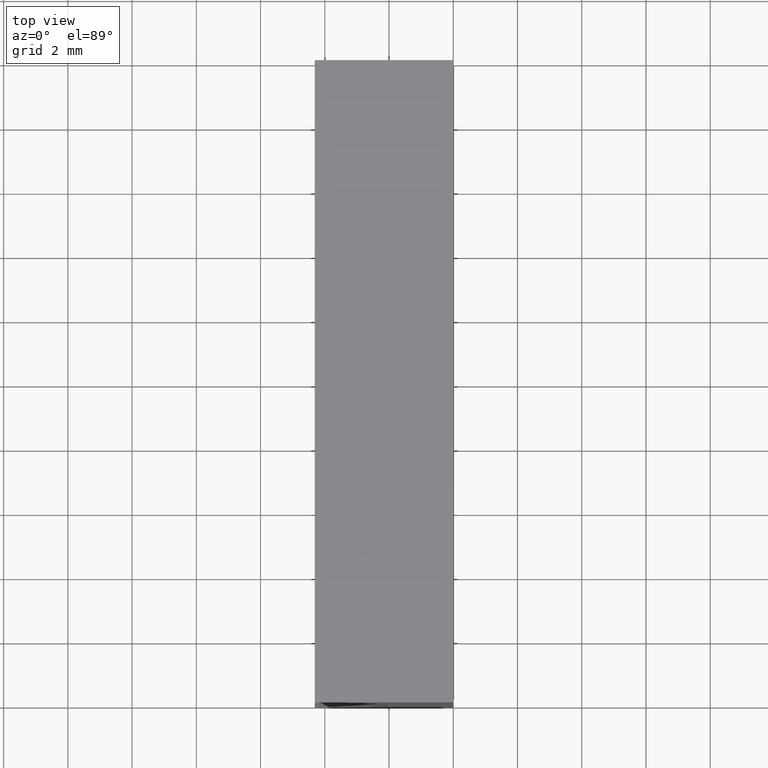
[diagram: clean part render]
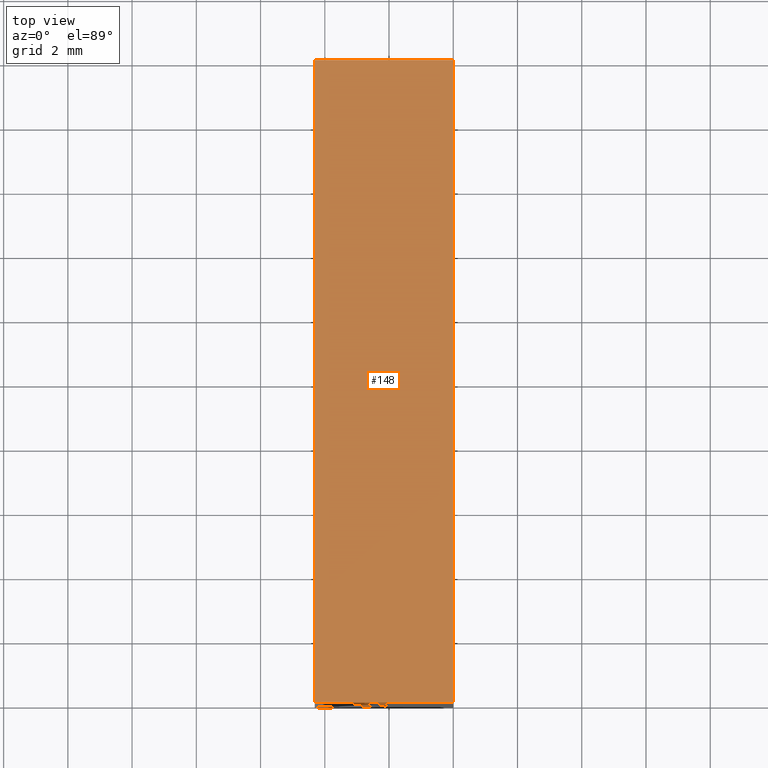
[diagram: same view with one face highlighted and labeled with its STEP entity id]
A machine part, top view. The second image highlights one B-rep face of the part: STEP entity #148.
In plain terms, the highlighted planar face has unit normal (0, 0, -1).
Its self-contained STEP definition (entity closure, byte-faithful):
#9 = CARTESIAN_POINT ( 'NONE',  ( 6.123233995736766300E-016, 0.0000000000000000000, 10.00000000000000000 ) ) ;
#11 = DIRECTION ( 'NONE',  ( 1.000000000000000000, -0.0000000000000000000, -0.0000000000000000000 ) ) ;
#12 = DIRECTION ( 'NONE',  ( 0.0000000000000000000, 0.0000000000000000000, -1.000000000000000000 ) ) ;
#13 = DIRECTION ( 'NONE',  ( -1.000000000000000000, 0.0000000000000000000, -0.0000000000000000000 ) ) ;
#19 = EDGE_LOOP ( 'NONE', ( #86, #161, #40, #190 ) ) ;
#31 = LINE ( 'NONE', #90, #134 ) ;
#33 = DIRECTION ( 'NONE',  ( -0.0000000000000000000, -1.000000000000000000, -0.0000000000000000000 ) ) ;
#34 = LINE ( 'NONE', #184, #189 ) ;
#36 = LINE ( 'NONE', #172, #187 ) ;
#38 = VERTEX_POINT ( 'NONE', #125 ) ;
#40 = ORIENTED_EDGE ( 'NONE', *, *, #99, .F. ) ;
#42 = VECTOR ( 'NONE', #182, 1000.000000000000000 ) ;
#52 = PLANE ( 'NONE',  #60 ) ;
#57 = DIRECTION ( 'NONE',  ( -0.0000000000000000000, -1.000000000000000000, -0.0000000000000000000 ) ) ;
#59 = CARTESIAN_POINT ( 'NONE',  ( 6.123233995736766300E-016, 20.00000000000000000, 10.00000000000000000 ) ) ;
#60 = AXIS2_PLACEMENT_3D ( 'NONE', #159, #12, #13 ) ;
#62 = CARTESIAN_POINT ( 'NONE',  ( 6.123233995736766300E-016, 20.00000000000000000, 10.00000000000000000 ) ) ;
#86 = ORIENTED_EDGE ( 'NONE', *, *, #179, .T. ) ;
#90 = CARTESIAN_POINT ( 'NONE',  ( 6.123233995736766300E-016, 20.00000000000000000, 10.00000000000000000 ) ) ;
#99 = EDGE_CURVE ( 'NONE', #127, #203, #162, .T. ) ;
#120 = VERTEX_POINT ( 'NONE', #9 ) ;
#125 = CARTESIAN_POINT ( 'NONE',  ( -4.313401361089089100, 0.0000000000000000000, 10.00000000000000000 ) ) ;
#127 = VERTEX_POINT ( 'NONE', #173 ) ;
#134 = VECTOR ( 'NONE', #57, 1000.000000000000000 ) ;
#136 = EDGE_CURVE ( 'NONE', #127, #38, #36, .T. ) ;
#148 = ADVANCED_FACE ( 'NONE', ( #153 ), #52, .F. ) ;
#153 = FACE_OUTER_BOUND ( 'NONE', #19, .T. ) ;
#159 = CARTESIAN_POINT ( 'NONE',  ( 6.123233995736766300E-016, 20.00000000000000000, 10.00000000000000000 ) ) ;
#161 = ORIENTED_EDGE ( 'NONE', *, *, #188, .F. ) ;
#162 = LINE ( 'NONE', #59, #42 ) ;
#172 = CARTESIAN_POINT ( 'NONE',  ( -4.313401361089089100, 20.00000000000000000, 10.00000000000000000 ) ) ;
#173 = CARTESIAN_POINT ( 'NONE',  ( -4.313401361089089100, 20.00000000000000000, 10.00000000000000000 ) ) ;
#179 = EDGE_CURVE ( 'NONE', #38, #120, #34, .T. ) ;
#182 = DIRECTION ( 'NONE',  ( 1.000000000000000000, -0.0000000000000000000, -0.0000000000000000000 ) ) ;
#184 = CARTESIAN_POINT ( 'NONE',  ( 6.123233995736766300E-016, 0.0000000000000000000, 10.00000000000000000 ) ) ;
#187 = VECTOR ( 'NONE', #33, 1000.000000000000000 ) ;
#188 = EDGE_CURVE ( 'NONE', #203, #120, #31, .T. ) ;
#189 = VECTOR ( 'NONE', #11, 1000.000000000000000 ) ;
#190 = ORIENTED_EDGE ( 'NONE', *, *, #136, .T. ) ;
#203 = VERTEX_POINT ( 'NONE', #62 ) ;